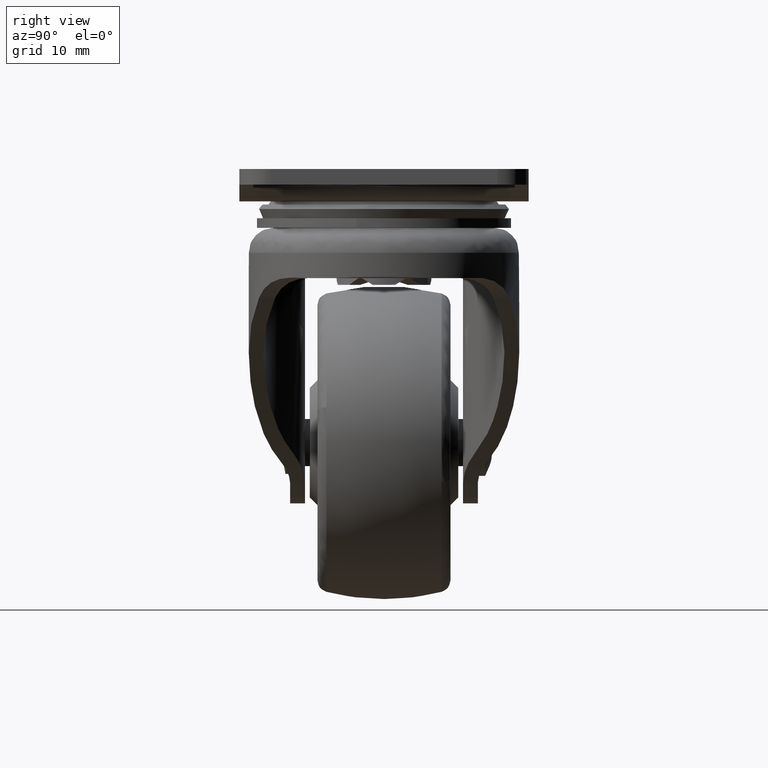
[diagram: clean part render]
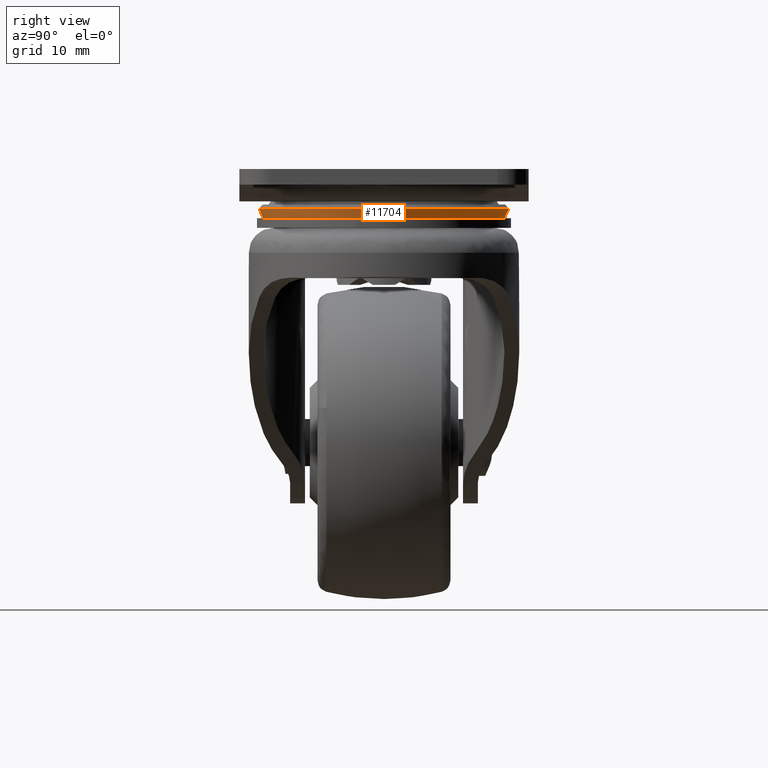
[diagram: same view with one face highlighted and labeled with its STEP entity id]
A machine part, right view. The second image highlights one B-rep face of the part: STEP entity #11704.
In plain terms, the highlighted face is a freeform B-spline surface patch.
Its self-contained STEP definition (entity closure, byte-faithful):
#11539=CARTESIAN_POINT('',(-12.101894054194744,10.479146866221251,-5.051042165785374));
#11540=CARTESIAN_POINT('',(-11.494881376513165,11.180158428387134,-5.051042165785373));
#11541=CARTESIAN_POINT('',(-10.810986929719677,11.806393198103256,-5.051042165785373));
#11542=CARTESIAN_POINT('',(0.995406268383577,22.617380127822944,-5.051042165785374));
#11543=CARTESIAN_POINT('',(11.806393198103256,10.810986929719688,-5.051042165785373));
#11544=CARTESIAN_POINT('',(22.617380127822930,-0.995406268383566,-5.051042165785374));
#11545=CARTESIAN_POINT('',(10.810986929719677,-11.806393198103247,-5.051042165785373));
#11546=CARTESIAN_POINT('',(-0.995406268383572,-22.617380127822930,-5.051042165785374));
#11547=CARTESIAN_POINT('',(-11.806393198103247,-10.810986929719677,-5.051042165785373));
#11548=CARTESIAN_POINT('',(-12.038135990789025,10.423938143740104,-5.797552912277426));
#11549=CARTESIAN_POINT('',(-11.434321321007578,11.121256470828188,-5.797552912277426));
#11550=CARTESIAN_POINT('',(-10.754029928852159,11.744191962268077,-5.797552912277425));
#11551=CARTESIAN_POINT('',(0.990162033415907,22.498221891120235,-5.797552912277426));
#11552=CARTESIAN_POINT('',(11.744191962268067,10.754029928852166,-5.797552912277425));
#11553=CARTESIAN_POINT('',(22.498221891120220,-0.990162033415896,-5.797552912277426));
#11554=CARTESIAN_POINT('',(10.754029928852161,-11.744191962268054,-5.797552912277425));
#11555=CARTESIAN_POINT('',(-0.990162033415902,-22.498221891120220,-5.797552912277426));
#11556=CARTESIAN_POINT('',(-11.744191962268067,-10.754029928852153,-5.797552912277425));
#11557=CARTESIAN_POINT('',(-11.661072343773723,10.097435092458079,-6.359344823858942));
#11558=CARTESIAN_POINT('',(-11.076170615471193,10.772911716499806,-6.359344823858941));
#11559=CARTESIAN_POINT('',(-10.417187601419791,11.376335355902361,-6.359344823858941));
#11560=CARTESIAN_POINT('',(0.959147754482561,21.793522957322160,-6.359344823858942));
#11561=CARTESIAN_POINT('',(11.376335355902349,10.417187601419798,-6.359344823858941));
#11562=CARTESIAN_POINT('',(21.793522957322146,-0.959147754482550,-6.359344823858942));
#11563=CARTESIAN_POINT('',(10.417187601419794,-11.376335355902340,-6.359344823858941));
#11564=CARTESIAN_POINT('',(-0.959147754482555,-21.793522957322129,-6.359344823858942));
#11565=CARTESIAN_POINT('',(-11.376335355902349,-10.417187601419787,-6.359344823858941));
#11573=(BOUNDED_SURFACE()B_SPLINE_SURFACE(2,2,((#11539,#11548,#11557),(#11540,#11549,#11558),(#11541,#11550,#11559),(#11542,#11551,#11560),(#11543,#11552,#11561),(#11544,#11553,#11562),(#11545,#11554,#11563),(#11546,#11555,#11564),(#11547,#11556,#11565)),.UNSPECIFIED.,.F.,.F.,.U.)B_SPLINE_SURFACE_WITH_KNOTS((3,2,2,2,3),(3,3),(0.0,2.121882702914001,28.645441784176089,55.169000865438171,81.692559946700257),(0.0,1.466606424776311),.UNSPECIFIED.)GEOMETRIC_REPRESENTATION_ITEM()RATIONAL_B_SPLINE_SURFACE(((0.901409226404780,0.859098852258441,0.900936707229845),(0.919950517928797,0.876769852067488,0.919468279399415),(0.942023480019214,0.897806752780668,0.941529670831878),(0.666111190758536,0.634845243086284,0.665762014933559),(0.942023480019214,0.897806752780668,0.941529670831878),(0.666111190758536,0.634845243086284,0.665762014933559),(0.942023480019214,0.897806752780668,0.941529670831878),(0.666111190758536,0.634845243086284,0.665762014933559),(0.942023480019214,0.897806752780668,0.941529670831878)))REPRESENTATION_ITEM('')SURFACE());
#11574=CARTESIAN_POINT('',(-11.693286791178430,10.125327586276770,-6.309999999891529));
#11575=VERTEX_POINT('',#11574);
#11576=CARTESIAN_POINT('',(15.467876864888300,7.105427E-015,-6.310000000000000));
#11577=VERTEX_POINT('',#11576);
#11578=CARTESIAN_POINT('',(-11.693286791178432,10.125327586276772,-6.309999999891529));
#11579=CARTESIAN_POINT('',(-7.067122859750949,15.467876864888309,-6.310000000000000));
#11580=CARTESIAN_POINT('',(0.0,15.467876864888311,-6.310000000000000));
#11581=CARTESIAN_POINT('',(15.467876864888296,15.467876864888311,-6.310000000000000));
#11582=CARTESIAN_POINT('',(15.467876864888300,7.105427E-015,-6.310000000000000));
#11590=(BOUNDED_CURVE()B_SPLINE_CURVE(2,(#11578,#11579,#11580,#11581,#11582),.UNSPECIFIED.,.F.,.U.)B_SPLINE_CURVE_WITH_KNOTS((3,2,3),(0.114170618178077,0.250000000000000,0.500000000000000),.UNSPECIFIED.)CURVE()GEOMETRIC_REPRESENTATION_ITEM()RATIONAL_B_SPLINE_CURVE((0.854652565050899,0.840865980594942,1.0,0.707106781186548,1.0))REPRESENTATION_ITEM(''));
#11591=EDGE_CURVE('',#11575,#11577,#11590,.T.);
#11592=ORIENTED_EDGE('',*,*,#11591,.F.);
#11593=CARTESIAN_POINT('',(-12.095692818177110,10.473774769565630,-5.115688314577911));
#11594=VERTEX_POINT('',#11593);
#11595=CARTESIAN_POINT('',(-12.095692818177110,10.473774769565633,-5.115688314577910));
#11596=CARTESIAN_POINT('',(-12.023955282266689,10.411656559002655,-5.789173063908642));
#11597=CARTESIAN_POINT('',(-11.693286791178435,10.125327586276772,-6.309999999891528));
#11605=(BOUNDED_CURVE()B_SPLINE_CURVE(2,(#11595,#11596,#11597),.UNSPECIFIED.,.F.,.U.)B_SPLINE_CURVE_WITH_KNOTS((3,3),(-1.478929167244767,-0.526950368403700),.UNSPECIFIED.)CURVE()GEOMETRIC_REPRESENTATION_ITEM()RATIONAL_B_SPLINE_CURVE((0.897739808652970,0.862746736117549,0.897310218994430))REPRESENTATION_ITEM(''));
#11606=EDGE_CURVE('',#11594,#11575,#11605,.T.);
#11607=ORIENTED_EDGE('',*,*,#11606,.F.);
#11608=CARTESIAN_POINT('',(16.000179460165750,7.105427E-015,-5.115688296342889));
#11609=VERTEX_POINT('',#11608);
#11610=CARTESIAN_POINT('',(-12.095692818177115,10.473774769565633,-5.115688314577911));
#11611=CARTESIAN_POINT('',(-7.310326750794737,16.000179460165761,-5.115688296342889));
#11612=CARTESIAN_POINT('',(0.0,16.000179460165761,-5.115688296342889));
#11613=CARTESIAN_POINT('',(16.000179460165757,16.000179460165757,-5.115688296342889));
#11614=CARTESIAN_POINT('',(16.000179460165750,7.105427E-015,-5.115688296342889));
#11622=(BOUNDED_CURVE()B_SPLINE_CURVE(2,(#11610,#11611,#11612,#11613,#11614),.UNSPECIFIED.,.F.,.U.)B_SPLINE_CURVE_WITH_KNOTS((3,2,3),(0.114170618177737,0.250000000000000,0.500000000000000),.UNSPECIFIED.)CURVE()GEOMETRIC_REPRESENTATION_ITEM()RATIONAL_B_SPLINE_CURVE((0.854652565050969,0.840865980594544,1.0,0.707106781186548,1.0))REPRESENTATION_ITEM(''));
#11623=EDGE_CURVE('',#11594,#11609,#11622,.T.);
#11624=ORIENTED_EDGE('',*,*,#11623,.T.);
#11625=CARTESIAN_POINT('',(15.847562856836280,-2.204654428893285,-5.115687656228293));
#11626=VERTEX_POINT('',#11625);
#11627=CARTESIAN_POINT('',(16.000179460165750,7.105427E-015,-5.115688296342889));
#11628=CARTESIAN_POINT('',(16.000179460165750,-1.107609635878887,-5.115688296342889));
#11629=CARTESIAN_POINT('',(15.847562856836284,-2.204654428893285,-5.115687656228293));
#11637=(BOUNDED_CURVE()B_SPLINE_CURVE(2,(#11627,#11628,#11629),.UNSPECIFIED.,.F.,.U.)B_SPLINE_CURVE_WITH_KNOTS((3,3),(0.500000000000000,0.523792450440962),.UNSPECIFIED.)CURVE()GEOMETRIC_REPRESENTATION_ITEM()RATIONAL_B_SPLINE_CURVE((1.0,0.972125410427548,0.949556459182815))REPRESENTATION_ITEM(''));
#11638=EDGE_CURVE('',#11609,#11626,#11637,.T.);
#11639=ORIENTED_EDGE('',*,*,#11638,.T.);
#11640=CARTESIAN_POINT('',(-1.294702397051816,-15.947711471923000,-5.115688149098622));
#11641=VERTEX_POINT('',#11640);
#11642=CARTESIAN_POINT('',(15.847562856836284,-2.204654428893285,-5.115687656228293));
#11643=CARTESIAN_POINT('',(13.928380135731890,-16.000179460165743,-5.115688296342889));
#11644=CARTESIAN_POINT('',(0.0,-16.000179460165739,-5.115688296342889));
#11645=CARTESIAN_POINT('',(-0.648414334682816,-16.000179460165743,-5.115688296342890));
#11646=CARTESIAN_POINT('',(-1.294702397051817,-15.947711471923009,-5.115688149098622));
#11654=(BOUNDED_CURVE()B_SPLINE_CURVE(2,(#11642,#11643,#11644,#11645,#11646),.UNSPECIFIED.,.F.,.U.)B_SPLINE_CURVE_WITH_KNOTS((3,2,3),(0.523792450440962,0.750000000000000,0.764091366877324),.UNSPECIFIED.)CURVE()GEOMETRIC_REPRESENTATION_ITEM()RATIONAL_B_SPLINE_CURVE((0.949556459182815,0.734981370758999,1.0,0.983490936791277,0.968842955714355))REPRESENTATION_ITEM(''));
#11655=EDGE_CURVE('',#11626,#11641,#11654,.T.);
#11656=ORIENTED_EDGE('',*,*,#11655,.T.);
#11657=CARTESIAN_POINT('',(-11.800342220108030,-10.805446114385230,-5.115688410554041));
#11658=VERTEX_POINT('',#11657);
#11659=CARTESIAN_POINT('',(-1.294702397051816,-15.947711471923000,-5.115688149098622));
#11660=CARTESIAN_POINT('',(-7.557174790351079,-15.439297183185715,-5.115688296342889));
#11661=CARTESIAN_POINT('',(-11.800342220108030,-10.805446114385227,-5.115688410554042));
#11669=(BOUNDED_CURVE()B_SPLINE_CURVE(2,(#11659,#11660,#11661),.UNSPECIFIED.,.F.,.U.)B_SPLINE_CURVE_WITH_KNOTS((3,3),(0.764091366877325,0.881637486164076),.UNSPECIFIED.)CURVE()GEOMETRIC_REPRESENTATION_ITEM()RATIONAL_B_SPLINE_CURVE((0.968842955714353,0.846653721272608,0.853966311196145))REPRESENTATION_ITEM(''));
#11670=EDGE_CURVE('',#11641,#11658,#11669,.T.);
#11671=ORIENTED_EDGE('',*,*,#11670,.T.);
#11672=CARTESIAN_POINT('',(-11.407762085577630,-10.445964718873229,-6.309999999933034));
#11673=VERTEX_POINT('',#11672);
#11674=CARTESIAN_POINT('',(-11.800342220108032,-10.805446114385228,-5.115688410554041));
#11675=CARTESIAN_POINT('',(-11.730356319461531,-10.741360779939701,-5.789173144292581));
#11676=CARTESIAN_POINT('',(-11.407762085577627,-10.445964718873233,-6.309999999933034));
#11684=(BOUNDED_CURVE()B_SPLINE_CURVE(2,(#11674,#11675,#11676),.UNSPECIFIED.,.F.,.U.)B_SPLINE_CURVE_WITH_KNOTS((3,3),(-1.478929026078830,-0.526950368324799),.UNSPECIFIED.)CURVE()GEOMETRIC_REPRESENTATION_ITEM()RATIONAL_B_SPLINE_CURVE((0.938188757479781,0.901619037875996,0.937739822892248))REPRESENTATION_ITEM(''));
#11685=EDGE_CURVE('',#11658,#11673,#11684,.T.);
#11686=ORIENTED_EDGE('',*,*,#11685,.T.);
#11687=CARTESIAN_POINT('',(15.467876864888300,7.105427E-015,-6.310000000000000));
#11688=CARTESIAN_POINT('',(15.467876864888296,-15.467876864888296,-6.310000000000000));
#11689=CARTESIAN_POINT('',(0.0,-15.467876864888289,-6.310000000000000));
#11690=CARTESIAN_POINT('',(-6.809251290393212,-15.467876864888298,-6.309999999999999));
#11691=CARTESIAN_POINT('',(-11.407762085577627,-10.445964718873233,-6.309999999933034));
#11699=(BOUNDED_CURVE()B_SPLINE_CURVE(2,(#11687,#11688,#11689,#11690,#11691),.UNSPECIFIED.,.F.,.U.)B_SPLINE_CURVE_WITH_KNOTS((3,2,3),(0.500000000000000,0.750000000000000,0.881637486163535),.UNSPECIFIED.)CURVE()GEOMETRIC_REPRESENTATION_ITEM()RATIONAL_B_SPLINE_CURVE((1.0,0.707106781186548,1.0,0.845777091844203,0.853966311196078))REPRESENTATION_ITEM(''));
#11700=EDGE_CURVE('',#11577,#11673,#11699,.T.);
#11701=ORIENTED_EDGE('',*,*,#11700,.F.);
#11702=EDGE_LOOP('',(#11592,#11607,#11624,#11639,#11656,#11671,#11686,#11701));
#11703=FACE_OUTER_BOUND('',#11702,.T.);
#11704=ADVANCED_FACE('',(#11703),#11573,.T.);